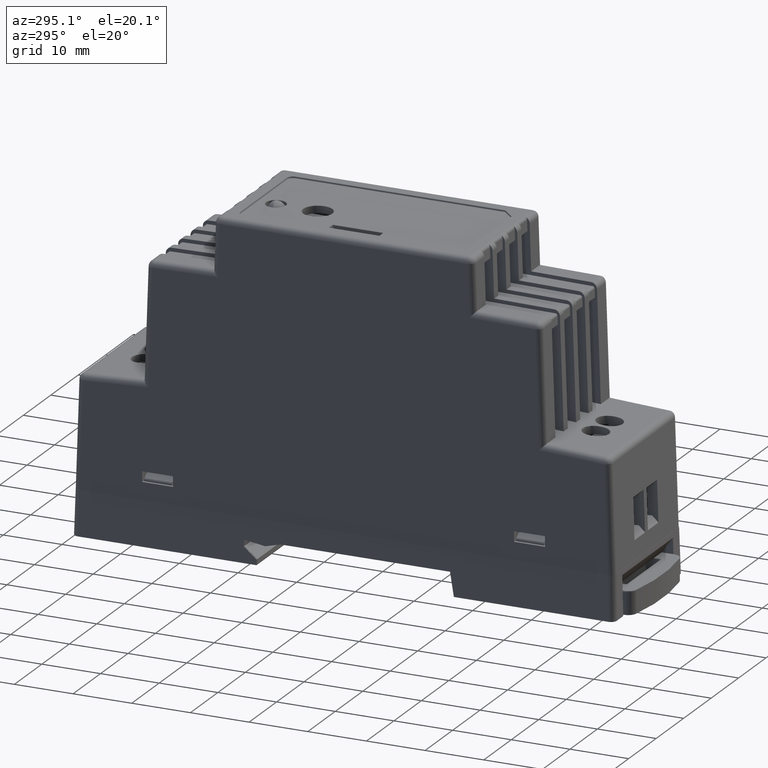
[diagram: clean part render]
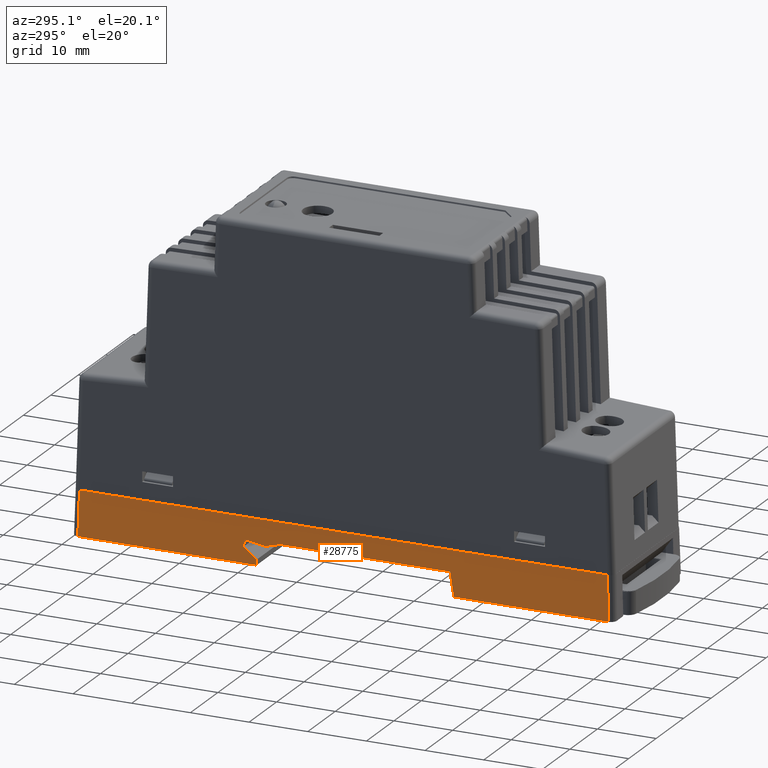
[diagram: same view with one face highlighted and labeled with its STEP entity id]
A machine part, auxiliary view. The second image highlights one B-rep face of the part: STEP entity #28775.
In plain terms, the highlighted planar face has unit normal (-0.9997, 0, 0.0262).
Its self-contained STEP definition (entity closure, byte-faithful):
#15283=CARTESIAN_POINT('',(-12.250000057283099,-45.001132440175098,0.000008968611609));
#15284=VERTEX_POINT('',#15283);
#15387=CARTESIAN_POINT('',(-12.250000000000000,45.001132675030000,0.0));
#15388=VERTEX_POINT('',#15387);
#15395=CARTESIAN_POINT('',(-12.250000000000000,45.001132675030000,0.0));
#15396=DIRECTION('',(0.0,-1.0,0.0));
#15397=VECTOR('',#15396,90.002265115205091);
#15398=LINE('',#15395,#15397);
#15399=EDGE_CURVE('',#15388,#15284,#15398,.T.);
#28641=CARTESIAN_POINT('',(-12.449013304759999,-18.885819338950000,-7.600000321397000));
#28642=VERTEX_POINT('',#28641);
#28649=CARTESIAN_POINT('',(-12.344269616229999,-18.185819324920001,-3.600000241238000));
#28650=VERTEX_POINT('',#28649);
#28651=CARTESIAN_POINT('',(-12.449013304759999,-18.885819338950000,-7.600000321397000));
#28652=DIRECTION('',(0.025785354176500,0.172323015718998,0.984702946965988));
#28653=VECTOR('',#28652,4.062138833324248);
#28654=LINE('',#28651,#28653);
#28655=EDGE_CURVE('',#28642,#28650,#28654,.T.);
#28674=CARTESIAN_POINT('',(-12.453788712830001,6.437084555966001,-7.782365797671000));
#28675=DIRECTION('',(-0.999657324974553,0.0,0.026176948346229));
#28676=DIRECTION('',(0.026176948346229,0.0,0.999657324974553));
#28677=AXIS2_PLACEMENT_3D('',#28674,#28675,#28676);
#28678=PLANE('',#28677);
#28679=CARTESIAN_POINT('',(-12.449013304759999,45.200145687690004,-7.600000321397000));
#28680=VERTEX_POINT('',#28679);
#28681=CARTESIAN_POINT('',(-12.449013304759999,45.200145687690004,-7.600000321397000));
#28682=DIRECTION('',(0.026167984303299,-0.026167984307605,0.999315001986250));
#28683=VECTOR('',#28682,7.605209882699749);
#28684=LINE('',#28681,#28683);
#28685=EDGE_CURVE('',#28680,#15388,#28684,.T.);
#28686=ORIENTED_EDGE('',*,*,#28685,.F.);
#28687=CARTESIAN_POINT('',(-12.448576872389999,14.740672000000002,-7.600000321397000));
#28688=VERTEX_POINT('',#28687);
#28689=CARTESIAN_POINT('',(-12.448576872389999,14.740672000000002,-7.600000321397000));
#28690=DIRECTION('',(-0.000014328296713,0.999999999897350,0.0));
#28691=VECTOR('',#28690,30.459473690816672);
#28692=LINE('',#28689,#28691);
#28693=EDGE_CURVE('',#28688,#28680,#28692,.T.);
#28694=ORIENTED_EDGE('',*,*,#28693,.F.);
#28695=CARTESIAN_POINT('',(-12.447267575260001,14.697601686500001,-7.500000241157000));
#28696=VERTEX_POINT('',#28695);
#28697=CARTESIAN_POINT('',(-12.446395215080324,14.697609985734632,-7.500019510208773));
#28698=DIRECTION('',(-0.024043108992842,0.395458073439228,-0.918169287801380));
#28699=VECTOR('',#28698,0.108880985226776);
#28700=LINE('',#28697,#28699);
#28701=EDGE_CURVE('',#28696,#28688,#28700,.T.);
#28702=ORIENTED_EDGE('',*,*,#28701,.F.);
#28703=CARTESIAN_POINT('',(-12.425665790620002,14.697601686500001,-6.708394729307000));
#28704=VERTEX_POINT('',#28703);
#28705=CARTESIAN_POINT('',(-12.425665790620002,14.697601686500001,-6.708394729307000));
#28706=DIRECTION('',(-0.027278418023315,0.0,-0.999627874716459));
#28707=VECTOR('',#28706,0.791900197935910);
#28708=LINE('',#28705,#28707);
#28709=EDGE_CURVE('',#28704,#28696,#28708,.T.);
#28710=ORIENTED_EDGE('',*,*,#28709,.F.);
#28711=CARTESIAN_POINT('',(-12.380533686970001,16.820751549950003,-4.984869228487000));
#28712=VERTEX_POINT('',#28711);
#28713=CARTESIAN_POINT('',(-12.380533686970001,16.820751549950003,-4.984869228487000));
#28714=DIRECTION('',(-0.016501553742320,-0.776282706518301,-0.630168912502601));
#28715=VECTOR('',#28714,2.735021462699054);
#28716=LINE('',#28713,#28715);
#28717=EDGE_CURVE('',#28712,#28704,#28716,.T.);
#28718=ORIENTED_EDGE('',*,*,#28717,.F.);
#28719=CARTESIAN_POINT('',(-12.380533686970001,17.020751549939998,-4.984869228487000));
#28720=VERTEX_POINT('',#28719);
#28721=CARTESIAN_POINT('',(-12.380533686970001,17.020751549939998,-4.984869228487000));
#28722=DIRECTION('',(4.529710E-013,-1.0,-1.554312E-013));
#28723=VECTOR('',#28722,0.199999999989995);
#28724=LINE('',#28721,#28723);
#28725=EDGE_CURVE('',#28720,#28712,#28724,.T.);
#28726=ORIENTED_EDGE('',*,*,#28725,.F.);
#28727=CARTESIAN_POINT('',(-12.348154379750000,16.820751549939999,-3.748353374365001));
#28728=VERTEX_POINT('',#28727);
#28729=CARTESIAN_POINT('',(-12.348154379750000,16.820751549939999,-3.748353374365001));
#28730=DIRECTION('',(-0.025841336840430,0.159616366482894,-0.986840838667056));
#28731=VECTOR('',#28730,1.253004340387975);
#28732=LINE('',#28729,#28731);
#28733=EDGE_CURVE('',#28728,#28720,#28732,.T.);
#28734=ORIENTED_EDGE('',*,*,#28733,.F.);
#28735=CARTESIAN_POINT('',(-12.362599761360000,13.320751549939999,-4.300000241157001));
#28736=VERTEX_POINT('',#28735);
#28737=CARTESIAN_POINT('',(-12.362599761360000,13.320751549939999,-4.300000241157001));
#28738=DIRECTION('',(0.004076889232852,0.987797532917129,0.155690118302405));
#28739=VECTOR('',#28738,3.543236223382700);
#28740=LINE('',#28737,#28739);
#28741=EDGE_CURVE('',#28736,#28728,#28740,.T.);
#28742=ORIENTED_EDGE('',*,*,#28741,.F.);
#28743=CARTESIAN_POINT('',(-12.344269616229999,10.720751550050000,-3.600000241188001));
#28744=VERTEX_POINT('',#28743);
#28745=CARTESIAN_POINT('',(-12.344269616229999,10.720751550050000,-3.600000241188001));
#28746=DIRECTION('',(-0.006807487253843,0.965593384035326,-0.259967449548007));
#28747=VECTOR('',#28746,2.692644795290512);
#28748=LINE('',#28745,#28747);
#28749=EDGE_CURVE('',#28744,#28736,#28748,.T.);
#28750=ORIENTED_EDGE('',*,*,#28749,.F.);
#28751=CARTESIAN_POINT('',(-12.344269616229999,10.720751550050000,-3.600000241188001));
#28752=DIRECTION('',(4.793230E-014,-1.0,-1.727529E-012));
#28753=VECTOR('',#28752,28.906570874970001);
#28754=LINE('',#28751,#28753);
#28755=EDGE_CURVE('',#28744,#28650,#28754,.T.);
#28756=ORIENTED_EDGE('',*,*,#28755,.T.);
#28757=ORIENTED_EDGE('',*,*,#28655,.F.);
#28758=CARTESIAN_POINT('',(-12.449013304768201,-45.200145687693009,-7.600000321396710));
#28759=VERTEX_POINT('',#28758);
#28760=CARTESIAN_POINT('',(-12.449013304759999,-45.200145687693009,-7.600000321397000));
#28761=DIRECTION('',(0.0,1.0,0.0));
#28762=VECTOR('',#28761,26.314326348743009);
#28763=LINE('',#28760,#28762);
#28764=EDGE_CURVE('',#28759,#28642,#28763,.T.);
#28765=ORIENTED_EDGE('',*,*,#28764,.F.);
#28766=CARTESIAN_POINT('',(-12.449013304768213,-45.200145687692981,-7.600000321396710));
#28767=DIRECTION('',(0.026167984303299,0.026167984307606,0.999315001986250));
#28768=VECTOR('',#28767,7.605218849814576);
#28769=LINE('',#28766,#28768);
#28770=EDGE_CURVE('',#28759,#15284,#28769,.T.);
#28771=ORIENTED_EDGE('',*,*,#28770,.T.);
#28772=ORIENTED_EDGE('',*,*,#15399,.F.);
#28773=EDGE_LOOP('',(#28686,#28694,#28702,#28710,#28718,#28726,#28734,#28742,#28750,#28756,#28757,#28765,#28771,#28772));
#28774=FACE_OUTER_BOUND('',#28773,.T.);
#28775=ADVANCED_FACE('',(#28774),#28678,.T.);